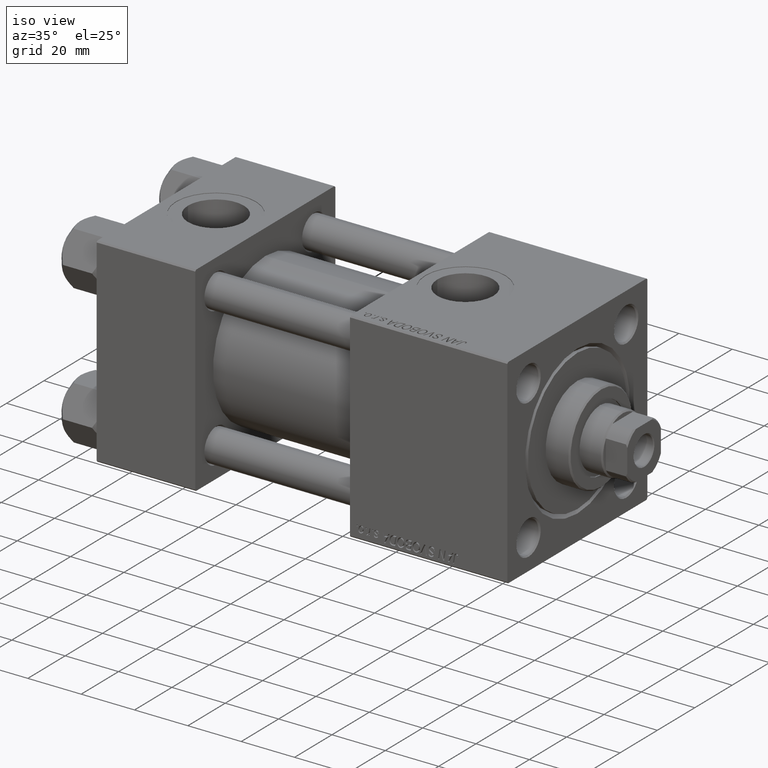
[diagram: clean part render]
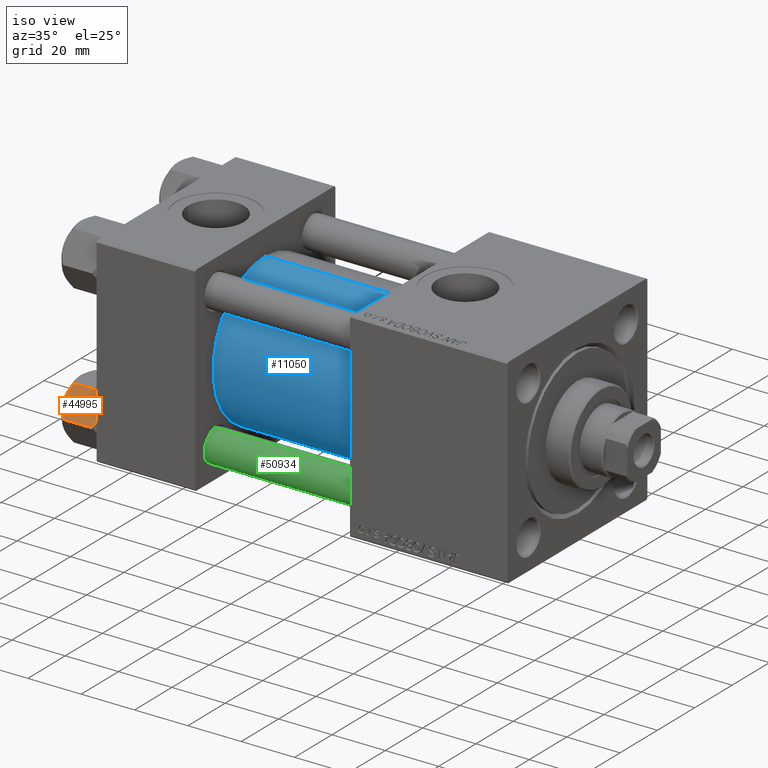
[diagram: same view with three faces highlighted in distinct colors, each labeled with its STEP entity id]
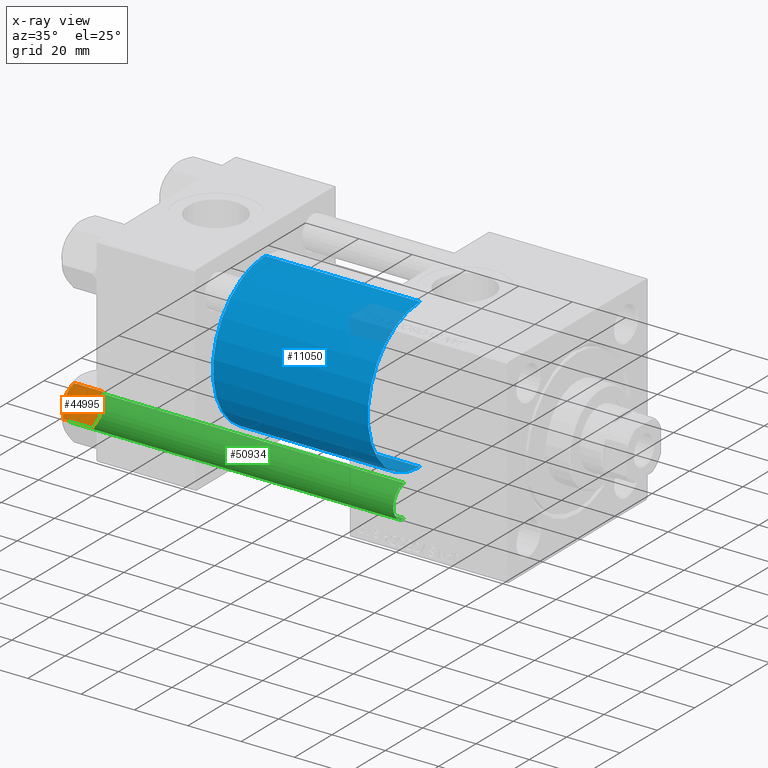
[diagram: x-ray of the same camera — body ghosted, the three highlighted faces saturated]
A machine part, iso view with three faces highlighted in distinct colors.
The next image is the same camera in x-ray (body ghosted, the three faces saturated) — at least one of them is partly hidden behind the body in this view.
Their STEP definitions:

[orange] entity #44995 — the highlighted planar face has unit normal (0, 0.866, -0.5).
#1511 = CARTESIAN_POINT ( 'NONE',  ( -11.61999999999999922, 6.270720075409452187E-15, -1.556784808024810562 ) ) ;
#1613 = DIRECTION ( 'NONE',  ( 0.8660254037844385966, -0.5000000000000002220, 0.000000000000000000 ) ) ;
#2557 = CARTESIAN_POINT ( 'NONE',  ( -11.61999999999999922, 6.270720075510426383E-15, -12.44321519197518811 ) ) ;
#4078 = ORIENTED_EDGE ( 'NONE', *, *, #46003, .F. ) ;
#5272 = LINE ( 'NONE', #40444, #10552 ) ;
#7011 = CARTESIAN_POINT ( 'NONE',  ( -8.969430103550378064, 4.590921729663314466, -14.00000000000000178 ) ) ;
#9489 = FACE_OUTER_BOUND ( 'NONE', #39835, .T. ) ;
#9633 = VERTEX_POINT ( 'NONE', #27498 ) ;
#9652 = CARTESIAN_POINT ( 'NONE',  ( -8.209704053696567527, 5.906805847843725310, -14.00000000000000533 ) ) ;
#10552 = VECTOR ( 'NONE', #41222, 1000.000000000000000 ) ;
#10653 = VERTEX_POINT ( 'NONE', #1511 ) ;
#10862 = B_SPLINE_CURVE_WITH_KNOTS ( 'NONE', 3,
 ( #22647, #39142, #34693, #19204, #50700, #35202, #18173, #46761 ),
 .UNSPECIFIED., .F., .F.,
 ( 4, 2, 2, 4 ),
 ( 2.544312114902182352E-07, 0.003011550106433540791, 0.004517197944044565316, 0.006022845781655589842 ),
 .UNSPECIFIED. ) ;
#10943 = CARTESIAN_POINT ( 'NONE',  ( -9.227666995912096937, 4.143642311704127223, -13.96005881939308857 ) ) ;
#11784 = CARTESIAN_POINT ( 'NONE',  ( -8.715000000000003411, 5.031607595987592774, 0.000000000000000000 ) ) ;
#11837 = ORIENTED_EDGE ( 'NONE', *, *, #15136, .F. ) ;
#11906 = VERTEX_POINT ( 'NONE', #37386 ) ;
#12048 = CARTESIAN_POINT ( 'NONE',  ( -11.61999999999999922, 6.270720075409452187E-15, -1.556784808024810562 ) ) ;
#12539 = CARTESIAN_POINT ( 'NONE',  ( -8.715000000000003411, 5.031607595987592774, 0.000000000000000000 ) ) ;
#14631 = CARTESIAN_POINT ( 'NONE',  ( -8.715000000000001634, 5.031607595987591885, -14.00000000000000000 ) ) ;
#15136 = EDGE_CURVE ( 'NONE', #11906, #21669, #10862, .T. ) ;
#15145 = CARTESIAN_POINT ( 'NONE',  ( -11.16445427487471598, 0.7890283410878030645, -12.89876091710047312 ) ) ;
#15774 = EDGE_CURVE ( 'NONE', #9633, #26996, #30863, .T. ) ;
#17194 = ORIENTED_EDGE ( 'NONE', *, *, #19525, .F. ) ;
#17272 = CARTESIAN_POINT ( 'NONE',  ( -8.715000000000001634, 5.031607595987591885, -14.00000000000000000 ) ) ;
#18173 = CARTESIAN_POINT ( 'NONE',  ( -8.460569896449618099, 5.472293462311865753, 3.939644352451667145E-15 ) ) ;
#19204 = CARTESIAN_POINT ( 'NONE',  ( -7.455303369716805406, 7.213466161761384221, -0.3002673809867362764 ) ) ;
#19525 = EDGE_CURVE ( 'NONE', #21669, #10653, #48184, .T. ) ;
#19928 = CARTESIAN_POINT ( 'NONE',  ( -9.220295946303428636, 4.156409344131455796, 3.796401669593772542E-15 ) ) ;
#20649 = EDGE_CURVE ( 'NONE', #31713, #9633, #29971, .T. ) ;
#21314 = DIRECTION ( 'NONE',  ( 0.5000000000000001110, 0.8660254037844384856, 0.000000000000000000 ) ) ;
#21669 = VERTEX_POINT ( 'NONE', #12539 ) ;
#22647 = CARTESIAN_POINT ( 'NONE',  ( -5.809999999999997833, 10.06321519197518022, -1.556784808024814115 ) ) ;
#23166 = DIRECTION ( 'NONE',  ( -0.000000000000000000, -0.000000000000000000, 1.000000000000000000 ) ) ;
#25502 = PLANE ( 'NONE',  #40754 ) ;
#25668 = CARTESIAN_POINT ( 'NONE',  ( -5.809999999999997833, 10.06321519197518022, -12.44321519197518455 ) ) ;
#26530 = VECTOR ( 'NONE', #23166, 1000.000000000000000 ) ;
#26996 = VERTEX_POINT ( 'NONE', #30373 ) ;
#27498 = CARTESIAN_POINT ( 'NONE',  ( -8.715000000000001634, 5.031607595987591885, -14.00000000000000000 ) ) ;
#29262 = CARTESIAN_POINT ( 'NONE',  ( -11.61999999999999922, 6.270720075510426383E-15, -12.44321519197518811 ) ) ;
#29971 = B_SPLINE_CURVE_WITH_KNOTS ( 'NONE', 3,
 ( #2557, #15145, #34562, #30906, #46894, #10943, #7011, #14631 ),
 .UNSPECIFIED., .F., .F.,
 ( 4, 2, 2, 4 ),
 ( 2.544312114905218436E-07, 0.003011550106433537755, 0.004517197944044560980, 0.006022845781655582903 ),
 .UNSPECIFIED. ) ;
#30270 = LINE ( 'NONE', #30783, #26530 ) ;
#30373 = CARTESIAN_POINT ( 'NONE',  ( -5.809999999999997833, 10.06321519197518022, -12.44321519197518455 ) ) ;
#30783 = CARTESIAN_POINT ( 'NONE',  ( -5.809999999999997833, 10.06321519197518022, -14.00000000000000000 ) ) ;
#30863 = B_SPLINE_CURVE_WITH_KNOTS ( 'NONE', 3,
 ( #17272, #9652, #49551, #33024, #44588, #25668 ),
 .UNSPECIFIED., .F., .F.,
 ( 4, 2, 4 ),
 ( 0.006022845781655582903, 0.009013049135303629819, 0.01200325248895167847 ),
 .UNSPECIFIED. ) ;
#30906 = CARTESIAN_POINT ( 'NONE',  ( -9.974696630283190757, 2.849749030213795109, -13.69973261901325934 ) ) ;
#31713 = VERTEX_POINT ( 'NONE', #29262 ) ;
#33024 = CARTESIAN_POINT ( 'NONE',  ( -6.733375043383492020, 8.463882702393842550, -13.28854452935654962 ) ) ;
#34562 = CARTESIAN_POINT ( 'NONE',  ( -10.69859855102501101, 1.595914123792268491, -13.28585617404753627 ) ) ;
#34693 = CARTESIAN_POINT ( 'NONE',  ( -6.731401448974986934, 8.467301068182916168, -0.7141438259524646170 ) ) ;
#35202 = CARTESIAN_POINT ( 'NONE',  ( -8.202333004087897450, 5.919572880271055659, -0.03994118060690620559 ) ) ;
#36426 = CARTESIAN_POINT ( 'NONE',  ( -10.69662495661650148, 1.599332489581337668, -0.7114554706434472742 ) ) ;
#37386 = CARTESIAN_POINT ( 'NONE',  ( -5.809999999999997833, 10.06321519197518022, -1.556784808024814115 ) ) ;
#37546 = CARTESIAN_POINT ( 'NONE',  ( -11.61999999999999922, 6.288644352490894150E-15, -14.00000000000000000 ) ) ;
#39142 = CARTESIAN_POINT ( 'NONE',  ( -6.265545725125282850, 9.274186850887385702, -1.101239082899533539 ) ) ;
#39835 = EDGE_LOOP ( 'NONE', ( #43451, #42047, #17194, #11837, #4078, #40815 ) ) ;
#40444 = CARTESIAN_POINT ( 'NONE',  ( -11.61999999999999922, 6.288644352490894150E-15, -14.00000000000000000 ) ) ;
#40754 = AXIS2_PLACEMENT_3D ( 'NONE', #37546, #1613, #21314 ) ;
#40815 = ORIENTED_EDGE ( 'NONE', *, *, #15774, .F. ) ;
#41222 = DIRECTION ( 'NONE',  ( -0.000000000000000000, -0.000000000000000000, 1.000000000000000000 ) ) ;
#42047 = ORIENTED_EDGE ( 'NONE', *, *, #48201, .T. ) ;
#43451 = ORIENTED_EDGE ( 'NONE', *, *, #20649, .F. ) ;
#44588 = CARTESIAN_POINT ( 'NONE',  ( -6.265018354709776638, 9.275100283241455301, -12.89823354668505218 ) ) ;
#44995 = ADVANCED_FACE ( 'NONE', ( #9489 ), #25502, .F. ) ;
#46003 = EDGE_CURVE ( 'NONE', #26996, #11906, #30270, .T. ) ;
#46761 = CARTESIAN_POINT ( 'NONE',  ( -8.715000000000003411, 5.031607595987592774, 0.000000000000000000 ) ) ;
#46894 = CARTESIAN_POINT ( 'NONE',  ( -9.729165168613649328, 3.275021996682086822, -13.80960203119265906 ) ) ;
#47730 = CARTESIAN_POINT ( 'NONE',  ( -11.16498164529022219, 0.7881149087337359083, -1.101766453314949379 ) ) ;
#47995 = CARTESIAN_POINT ( 'NONE',  ( -9.716999946243694453, 3.296092779912229265, -0.1545239700039824915 ) ) ;
#48184 = B_SPLINE_CURVE_WITH_KNOTS ( 'NONE', 3,
 ( #11784, #19928, #47995, #36426, #47730, #12048 ),
 .UNSPECIFIED., .F., .F.,
 ( 4, 2, 4 ),
 ( 0.006022845781655589842, 0.009013049135303633289, 0.01200325248895167674 ),
 .UNSPECIFIED. ) ;
#48201 = EDGE_CURVE ( 'NONE', #31713, #10653, #5272, .T. ) ;
#49551 = CARTESIAN_POINT ( 'NONE',  ( -7.713000053756302599, 6.767122412062954062, -13.84547602999601601 ) ) ;
#50700 = CARTESIAN_POINT ( 'NONE',  ( -7.700834831386344170, 6.788193195293096949, -0.1903979688073401122 ) ) ;

[blue] entity #11050 — the highlighted cylindrical surface (partial cylindrical patch) has radius 28 mm, axis along (-1, -0, -0).
#533 = CARTESIAN_POINT ( 'NONE',  ( 95.00000000000000000, 8.269258236473776482E-16, -28.00000000000000000 ) ) ;
#5246 = VECTOR ( 'NONE', #13784, 1000.000000000000000 ) ;
#5579 = ORIENTED_EDGE ( 'NONE', *, *, #16642, .T. ) ;
#6934 = DIRECTION ( 'NONE',  ( -1.000000000000000000, -0.000000000000000000, -0.000000000000000000 ) ) ;
#7839 = VERTEX_POINT ( 'NONE', #12992 ) ;
#9343 = LINE ( 'NONE', #13536, #5246 ) ;
#9650 = DIRECTION ( 'NONE',  ( 1.000000000000000000, 0.000000000000000000, 0.000000000000000000 ) ) ;
#10355 = EDGE_LOOP ( 'NONE', ( #41769, #42993, #25676, #5579 ) ) ;
#11050 = ADVANCED_FACE ( 'NONE', ( #26366 ), #38683, .T. ) ;
#12614 = EDGE_CURVE ( 'NONE', #39614, #33463, #9343, .T. ) ;
#12992 = CARTESIAN_POINT ( 'NONE',  ( 95.00000000000000000, -2.602085213965210642E-15, 28.00000000000000000 ) ) ;
#13536 = CARTESIAN_POINT ( 'NONE',  ( 95.00000000000000000, 8.269258236473776482E-16, -28.00000000000000000 ) ) ;
#13784 = DIRECTION ( 'NONE',  ( -1.000000000000000000, -0.000000000000000000, -0.000000000000000000 ) ) ;
#13926 = CARTESIAN_POINT ( 'NONE',  ( 37.00000000000000000, -2.602085213965210642E-15, 28.00000000000000000 ) ) ;
#15399 = AXIS2_PLACEMENT_3D ( 'NONE', #26461, #46648, #26203 ) ;
#16642 = EDGE_CURVE ( 'NONE', #25425, #33463, #38021, .T. ) ;
#21299 = CARTESIAN_POINT ( 'NONE',  ( 95.00000000000000000, -2.602085213965210642E-15, 28.00000000000000000 ) ) ;
#21816 = LINE ( 'NONE', #21299, #22714 ) ;
#22714 = VECTOR ( 'NONE', #29940, 1000.000000000000000 ) ;
#22956 = CARTESIAN_POINT ( 'NONE',  ( 95.00000000000000000, -2.602085213965210642E-15, 0.000000000000000000 ) ) ;
#24593 = AXIS2_PLACEMENT_3D ( 'NONE', #22956, #6934, #42349 ) ;
#25425 = VERTEX_POINT ( 'NONE', #13926 ) ;
#25676 = ORIENTED_EDGE ( 'NONE', *, *, #37473, .T. ) ;
#26203 = DIRECTION ( 'NONE',  ( 0.000000000000000000, 0.000000000000000000, 1.000000000000000000 ) ) ;
#26366 = FACE_OUTER_BOUND ( 'NONE', #10355, .T. ) ;
#26461 = CARTESIAN_POINT ( 'NONE',  ( 37.00000000000000000, -2.602085213965210642E-15, 0.000000000000000000 ) ) ;
#29940 = DIRECTION ( 'NONE',  ( -1.000000000000000000, -0.000000000000000000, -0.000000000000000000 ) ) ;
#33463 = VERTEX_POINT ( 'NONE', #45136 ) ;
#37363 = CIRCLE ( 'NONE', #44207, 28.00000000000000000 ) ;
#37473 = EDGE_CURVE ( 'NONE', #7839, #25425, #21816, .T. ) ;
#38021 = CIRCLE ( 'NONE', #15399, 28.00000000000000000 ) ;
#38683 = CYLINDRICAL_SURFACE ( 'NONE', #24593, 28.00000000000000000 ) ;
#39614 = VERTEX_POINT ( 'NONE', #533 ) ;
#41662 = DIRECTION ( 'NONE',  ( 0.000000000000000000, 0.000000000000000000, -1.000000000000000000 ) ) ;
#41769 = ORIENTED_EDGE ( 'NONE', *, *, #12614, .F. ) ;
#42349 = DIRECTION ( 'NONE',  ( 0.000000000000000000, 0.000000000000000000, 1.000000000000000000 ) ) ;
#42993 = ORIENTED_EDGE ( 'NONE', *, *, #47799, .F. ) ;
#44207 = AXIS2_PLACEMENT_3D ( 'NONE', #49549, #9650, #41662 ) ;
#45136 = CARTESIAN_POINT ( 'NONE',  ( 37.00000000000000000, 8.269258236473776482E-16, -28.00000000000000000 ) ) ;
#46648 = DIRECTION ( 'NONE',  ( 1.000000000000000000, -0.000000000000000000, 0.000000000000000000 ) ) ;
#47799 = EDGE_CURVE ( 'NONE', #7839, #39614, #37363, .T. ) ;
#49549 = CARTESIAN_POINT ( 'NONE',  ( 95.00000000000000000, -2.602085213965210642E-15, 0.000000000000000000 ) ) ;

[green] entity #50934 — the highlighted cylindrical surface (edge-blend (fillet) strip) has radius 6 mm, axis along (-1, 0, -0).
#1625 = CARTESIAN_POINT ( 'NONE',  ( 0.000000000000000000, 0.000000000000000000, 123.5000000000000426 ) ) ;
#3686 = VERTEX_POINT ( 'NONE', #46494 ) ;
#6074 = VERTEX_POINT ( 'NONE', #40006 ) ;
#8722 = FACE_OUTER_BOUND ( 'NONE', #12482, .T. ) ;
#9411 = CARTESIAN_POINT ( 'NONE',  ( 0.000000000000000000, 0.000000000000000000, 0.4999999999999865663 ) ) ;
#10431 = DIRECTION ( 'NONE',  ( -0.000000000000000000, -0.000000000000000000, 1.000000000000000000 ) ) ;
#12482 = EDGE_LOOP ( 'NONE', ( #31708, #30887, #23267, #38865 ) ) ;
#13350 = CARTESIAN_POINT ( 'NONE',  ( -6.000000000000000888, 0.000000000000000000, 124.0000000000000000 ) ) ;
#18310 = EDGE_CURVE ( 'NONE', #3686, #21514, #23884, .T. ) ;
#20980 = LINE ( 'NONE', #13350, #38197 ) ;
#21489 = DIRECTION ( 'NONE',  ( 1.000000000000000000, 0.000000000000000000, 0.000000000000000000 ) ) ;
#21514 = VERTEX_POINT ( 'NONE', #34663 ) ;
#23267 = ORIENTED_EDGE ( 'NONE', *, *, #48972, .T. ) ;
#23861 = LINE ( 'NONE', #24834, #49196 ) ;
#23884 = CIRCLE ( 'NONE', #51506, 6.000000000000000888 ) ;
#24222 = CARTESIAN_POINT ( 'NONE',  ( 0.000000000000000000, 0.000000000000000000, 124.0000000000000000 ) ) ;
#24834 = CARTESIAN_POINT ( 'NONE',  ( 6.000000000000000888, 7.347880794884120722E-16, 124.0000000000000000 ) ) ;
#25092 = EDGE_CURVE ( 'NONE', #3686, #6074, #20980, .T. ) ;
#28677 = DIRECTION ( 'NONE',  ( -1.000000000000000000, 0.000000000000000000, 0.000000000000000000 ) ) ;
#30235 = DIRECTION ( 'NONE',  ( 0.000000000000000000, 0.000000000000000000, -1.000000000000000000 ) ) ;
#30887 = ORIENTED_EDGE ( 'NONE', *, *, #46749, .T. ) ;
#31539 = AXIS2_PLACEMENT_3D ( 'NONE', #9411, #10431, #21489 ) ;
#31708 = ORIENTED_EDGE ( 'NONE', *, *, #18310, .T. ) ;
#32342 = CYLINDRICAL_SURFACE ( 'NONE', #36630, 6.000000000000000888 ) ;
#34034 = CIRCLE ( 'NONE', #31539, 6.000000000000000888 ) ;
#34663 = CARTESIAN_POINT ( 'NONE',  ( 6.000000000000000888, 7.347880794884120722E-16, 123.5000000000000426 ) ) ;
#35430 = CARTESIAN_POINT ( 'NONE',  ( 6.000000000000000888, 7.347880794884120722E-16, 0.4999999999999865663 ) ) ;
#36630 = AXIS2_PLACEMENT_3D ( 'NONE', #24222, #48615, #28677 ) ;
#36962 = DIRECTION ( 'NONE',  ( -0.000000000000000000, -0.000000000000000000, -1.000000000000000000 ) ) ;
#38197 = VECTOR ( 'NONE', #36962, 1000.000000000000000 ) ;
#38865 = ORIENTED_EDGE ( 'NONE', *, *, #25092, .F. ) ;
#40006 = CARTESIAN_POINT ( 'NONE',  ( -6.000000000000000888, 0.000000000000000000, 0.4999999999999865663 ) ) ;
#46219 = DIRECTION ( 'NONE',  ( 1.000000000000000000, 0.000000000000000000, 0.000000000000000000 ) ) ;
#46494 = CARTESIAN_POINT ( 'NONE',  ( -6.000000000000000888, 0.000000000000000000, 123.5000000000000426 ) ) ;
#46749 = EDGE_CURVE ( 'NONE', #21514, #51336, #23861, .T. ) ;
#48615 = DIRECTION ( 'NONE',  ( -0.000000000000000000, -0.000000000000000000, -1.000000000000000000 ) ) ;
#48966 = DIRECTION ( 'NONE',  ( -0.000000000000000000, -0.000000000000000000, -1.000000000000000000 ) ) ;
#48972 = EDGE_CURVE ( 'NONE', #51336, #6074, #34034, .T. ) ;
#49196 = VECTOR ( 'NONE', #48966, 1000.000000000000000 ) ;
#50934 = ADVANCED_FACE ( 'NONE', ( #8722 ), #32342, .T. ) ;
#51336 = VERTEX_POINT ( 'NONE', #35430 ) ;
#51506 = AXIS2_PLACEMENT_3D ( 'NONE', #1625, #30235, #46219 ) ;